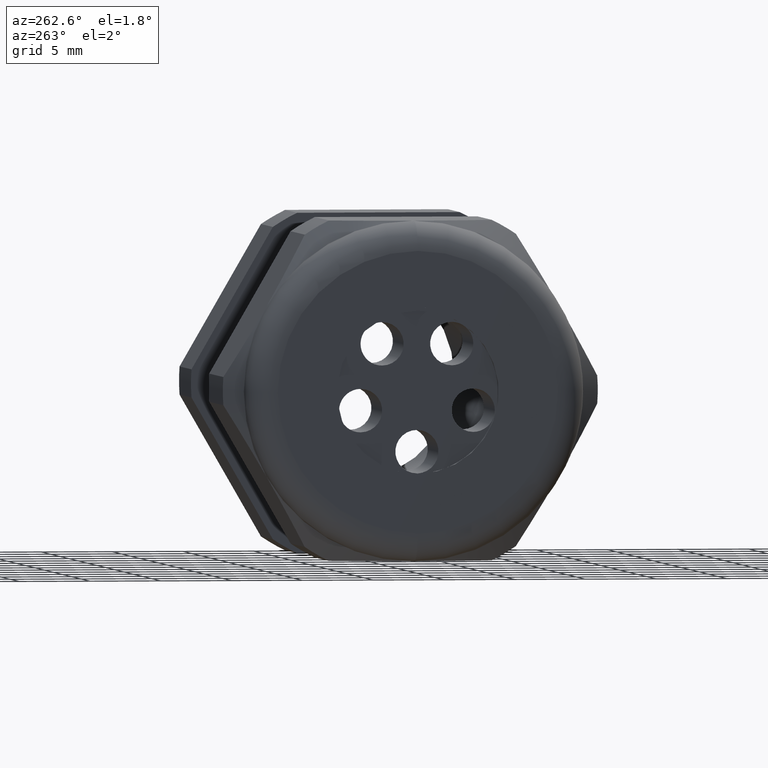
[diagram: clean part render]
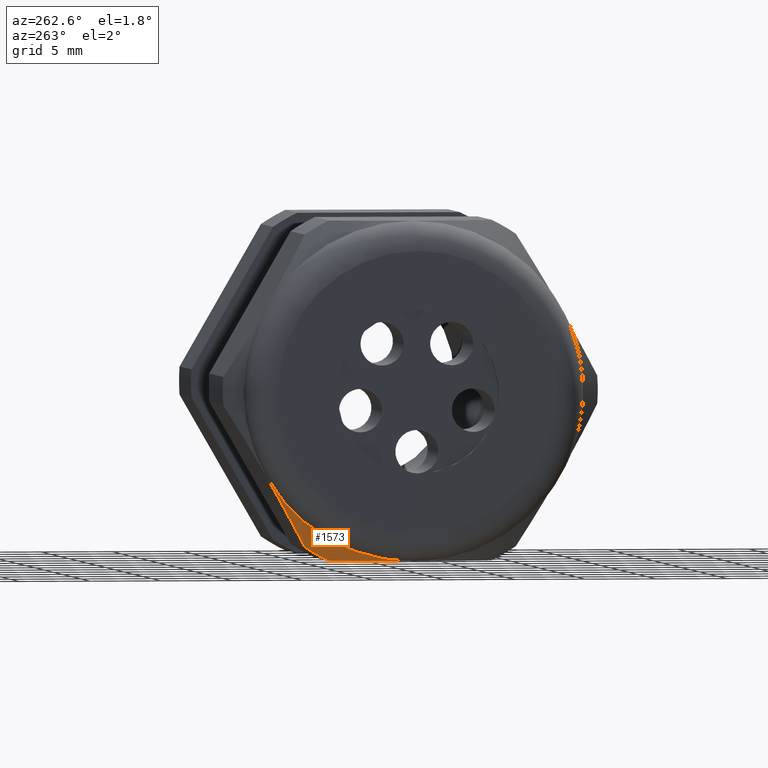
[diagram: same view with one face highlighted and labeled with its STEP entity id]
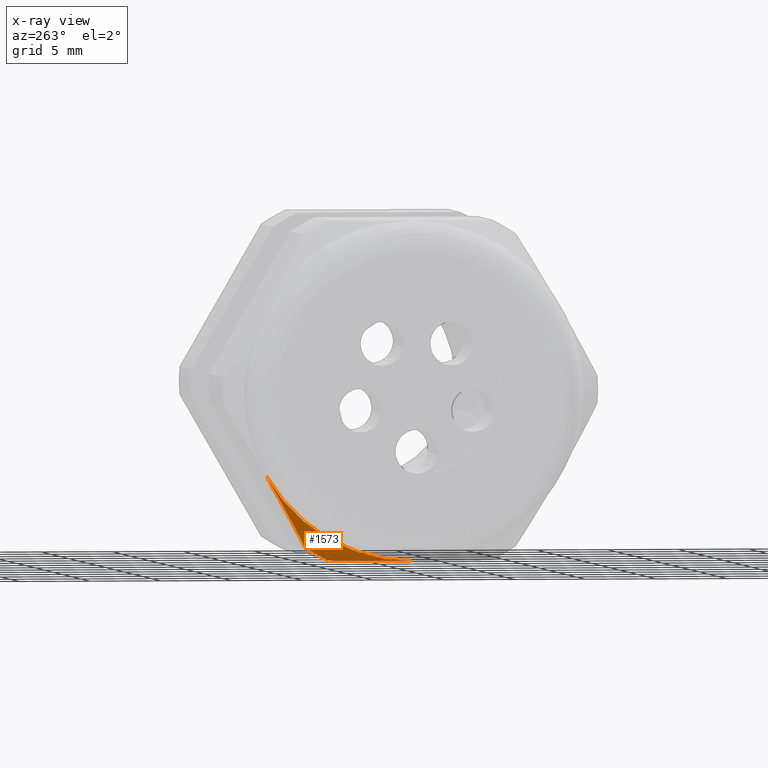
[diagram: x-ray of the same camera — body ghosted, the highlighted face saturated]
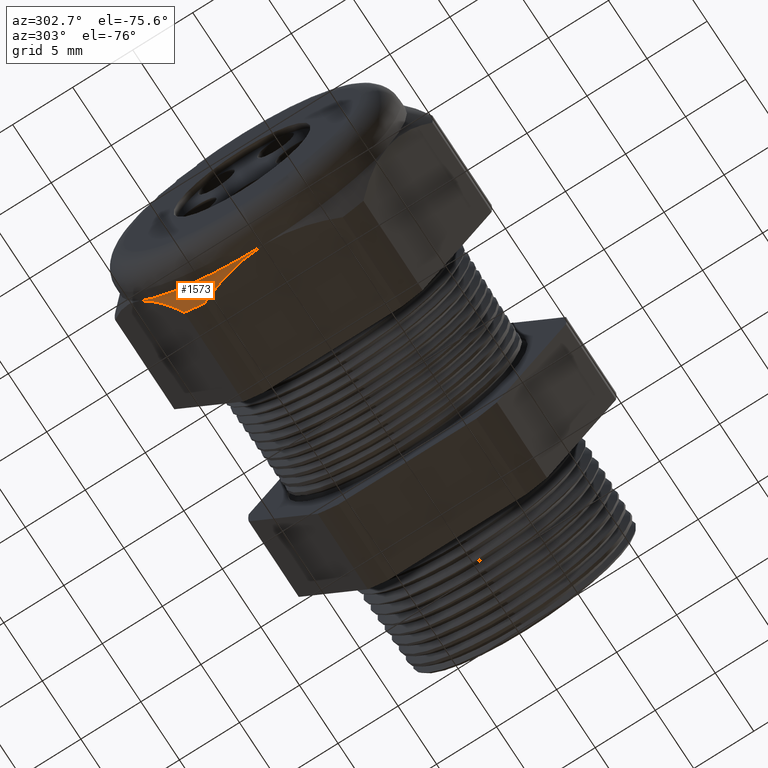
[diagram: same view with one face highlighted and labeled with its STEP entity id]
A machine part, auxiliary view. The second image highlights one B-rep face of the part: STEP entity #1573.
The next image is the same camera in x-ray: the body ghosted, the highlighted face saturated — about 0% of this face is hidden behind the body in this view.
A second angle (auxiliary view) of the same face is appended — the face is thin or edge-on in the first view.
In plain terms, the highlighted conical surface has half-angle 45 deg.
Its self-contained STEP definition (entity closure, byte-faithful):
#99 = CARTESIAN_POINT ( 'NONE',  ( -1.298221849142434900, 0.3873598765596237800, -0.2690730129851237100 ) ) ;
#100 = CARTESIAN_POINT ( 'NONE',  ( -1.299453644849873900, 0.3971857355050538200, -0.2520541260636334200 ) ) ;
#105 = CARTESIAN_POINT ( 'NONE',  ( -1.299763779527559200, 0.4021312490570417300, -0.2434882453220698600 ) ) ;
#106 = CARTESIAN_POINT ( 'NONE',  ( -1.299763779527559200, 0.4070319397786864000, -0.2350000000000001800 ) ) ;
#225 = VERTEX_POINT ( 'NONE', #2279 ) ;
#241 = VERTEX_POINT ( 'NONE', #2318 ) ;
#242 = EDGE_CURVE ( 'NONE', #241, #225, #2317, .T. ) ;
#1263 = EDGE_CURVE ( 'NONE', #1280, #225, #3290, .T. ) ;
#1279 = EDGE_CURVE ( 'NONE', #1296, #1280, #4378, .T. ) ;
#1280 = VERTEX_POINT ( 'NONE', #4374 ) ;
#1295 = EDGE_CURVE ( 'NONE', #241, #1296, #4398, .T. ) ;
#1296 = VERTEX_POINT ( 'NONE', #4399 ) ;
#1551 = ORIENTED_EDGE ( 'NONE', *, *, #242, .T. ) ;
#1552 = ORIENTED_EDGE ( 'NONE', *, *, #1263, .F. ) ;
#1553 = ORIENTED_EDGE ( 'NONE', *, *, #1279, .F. ) ;
#1554 = ORIENTED_EDGE ( 'NONE', *, *, #1295, .F. ) ;
#1573 = ADVANCED_FACE ( 'NONE', ( #4830 ), #4829, .T. ) ;
#1574 = EDGE_LOOP ( 'NONE', ( #1551, #1552, #1553, #1554 ) ) ;
#2279 = CARTESIAN_POINT ( 'NONE',  ( -1.299763779527559200, 0.4070319397786864000, -0.2350000000000001800 ) ) ;
#2313 = DIRECTION ( 'NONE',  ( 0.0000000000000000000, 0.0000000000000000000, -1.000000000000000000 ) ) ;
#2314 = DIRECTION ( 'NONE',  ( 1.000000000000000000, 0.0000000000000000000, 0.0000000000000000000 ) ) ;
#2315 = CARTESIAN_POINT ( 'NONE',  ( -1.299763779527559200, 0.0000000000000000000, 0.0000000000000000000 ) ) ;
#2316 = AXIS2_PLACEMENT_3D ( 'NONE', #2315, #2314, #2313 ) ;
#2317 = CIRCLE ( 'NONE', #2316, 0.4699999999999999200 ) ;
#2318 = CARTESIAN_POINT ( 'NONE',  ( -1.299763779527559200, 0.0000000000000000000, -0.4700000000000000300 ) ) ;
#3290 = B_SPLINE_CURVE_WITH_KNOTS ( 'NONE', 3,
 ( #4298, #4290, #4060, #4048, #4047, #4046, #99, #100, #105, #106 ),
 .UNSPECIFIED., .F., .F.,
 ( 4, 2, 2, 2, 4 ),
 ( 2.483251536698716100E-007, 0.002951677829872993000, 0.004427392582232652300, 0.005165249958412478900, 0.005903107334592305600 ),
 .UNSPECIFIED. ) ;
#4046 = CARTESIAN_POINT ( 'NONE',  ( -1.297304216752655600, 0.3824845463488700200, -0.2775173326138244400 ) ) ;
#4047 = CARTESIAN_POINT ( 'NONE',  ( -1.293700751481475100, 0.3679645453500630700, -0.3026667120697090800 ) ) ;
#4048 = CARTESIAN_POINT ( 'NONE',  ( -1.290164085422761200, 0.3584258972266240500, -0.3191881352550267600 ) ) ;
#4060 = CARTESIAN_POINT ( 'NONE',  ( -1.276620445010038200, 0.3301755151959553400, -0.3681192322653760200 ) ) ;
#4290 = CARTESIAN_POINT ( 'NONE',  ( -1.263697825203295800, 0.3118271010418955900, -0.3998996178185232900 ) ) ;
#4298 = CARTESIAN_POINT ( 'NONE',  ( -1.248063779527559300, 0.2938165587564948700, -0.4310947921287048800 ) ) ;
#4374 = CARTESIAN_POINT ( 'NONE',  ( -1.248063779527559300, 0.2938165587564948700, -0.4310947921287048800 ) ) ;
#4375 = DIRECTION ( 'NONE',  ( 0.0000000000000000000, 0.0000000000000000000, -1.000000000000000000 ) ) ;
#4376 = DIRECTION ( 'NONE',  ( 1.000000000000000000, 0.0000000000000000000, 0.0000000000000000000 ) ) ;
#4377 = AXIS2_PLACEMENT_3D ( 'NONE', #4383, #4376, #4375 ) ;
#4378 = CIRCLE ( 'NONE', #4377, 0.5217000000000000500 ) ;
#4383 = CARTESIAN_POINT ( 'NONE',  ( -1.248063779527559300, 0.0000000000000000000, 0.0000000000000000000 ) ) ;
#4388 = CARTESIAN_POINT ( 'NONE',  ( -1.248063779527559300, 0.2264307620443831200, -0.4700000000000000300 ) ) ;
#4389 = CARTESIAN_POINT ( 'NONE',  ( -1.255800509309333400, 0.2086052162099334700, -0.4700000000000000300 ) ) ;
#4390 = CARTESIAN_POINT ( 'NONE',  ( -1.262974602953726300, 0.1903621927138388900, -0.4700000000000000300 ) ) ;
#4391 = CARTESIAN_POINT ( 'NONE',  ( -1.275692781244513400, 0.1533252955870066900, -0.4700000000000000800 ) ) ;
#4392 = CARTESIAN_POINT ( 'NONE',  ( -1.281202062721105600, 0.1346420459264778300, -0.4700000000000002000 ) ) ;
#4393 = CARTESIAN_POINT ( 'NONE',  ( -1.290231001418866700, 0.09688970369981478300, -0.4699999999999999700 ) ) ;
#4394 = CARTESIAN_POINT ( 'NONE',  ( -1.293749478914868700, 0.07782038235249985600, -0.4700000000000000300 ) ) ;
#4395 = CARTESIAN_POINT ( 'NONE',  ( -1.298517019735541300, 0.03924163778662365800, -0.4700000000000000300 ) ) ;
#4396 = CARTESIAN_POINT ( 'NONE',  ( -1.299763779527558900, 0.01964242875915822200, -0.4700000000000000800 ) ) ;
#4397 = CARTESIAN_POINT ( 'NONE',  ( -1.299763779527559200, 0.0000000000000000000, -0.4700000000000000300 ) ) ;
#4398 = B_SPLINE_CURVE_WITH_KNOTS ( 'NONE', 3,
 ( #4397, #4396, #4395, #4394, #4393, #4392, #4391, #4390, #4389, #4388 ),
 .UNSPECIFIED., .F., .F.,
 ( 4, 2, 2, 2, 4 ),
 ( 0.01398828679202869000, 0.01545854684696777000, 0.01692880690190685200, 0.01839906695684593100, 0.01986932701178501000 ),
 .UNSPECIFIED. ) ;
#4399 = CARTESIAN_POINT ( 'NONE',  ( -1.248063779527559300, 0.2264307620443831200, -0.4700000000000000300 ) ) ;
#4825 = DIRECTION ( 'NONE',  ( 0.0000000000000000000, 0.0000000000000000000, 1.000000000000000000 ) ) ;
#4826 = DIRECTION ( 'NONE',  ( 1.000000000000000000, 0.0000000000000000000, 0.0000000000000000000 ) ) ;
#4827 = AXIS2_PLACEMENT_3D ( 'NONE', #4834, #4826, #4825 ) ;
#4829 = CONICAL_SURFACE ( 'NONE', #4827, 0.4699999999999999200, 0.7853981633974501700 ) ;
#4830 = FACE_OUTER_BOUND ( 'NONE', #1574, .T. ) ;
#4834 = CARTESIAN_POINT ( 'NONE',  ( -1.299763779527559200, 0.0000000000000000000, 0.0000000000000000000 ) ) ;